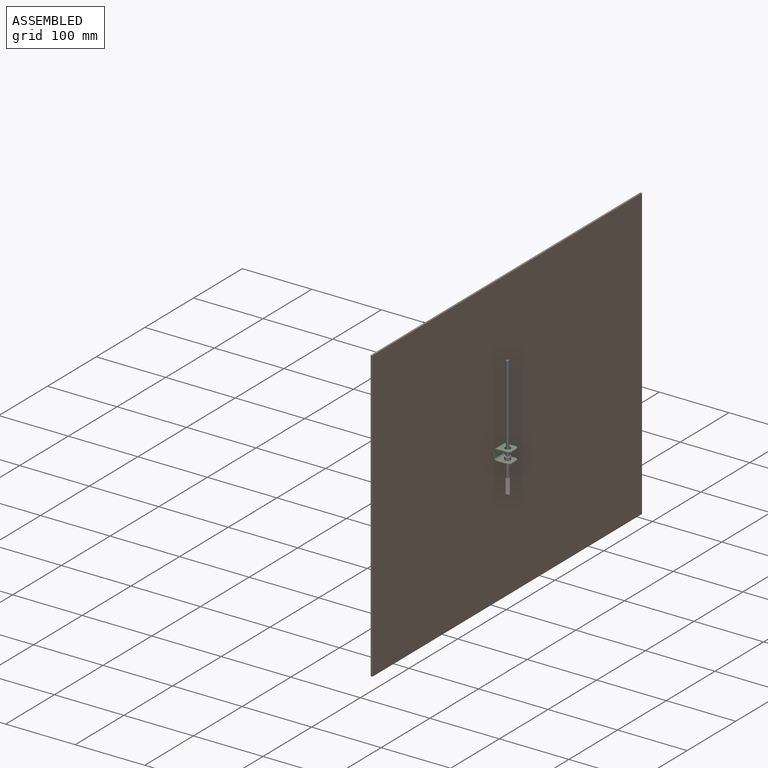
[diagram: assembled view]
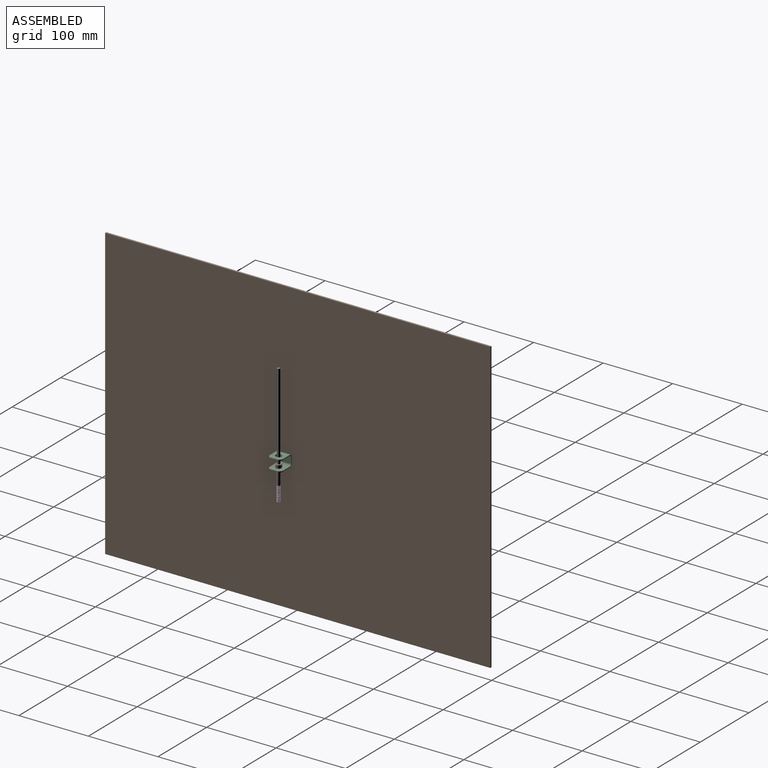
[diagram: assembled view, second angle]
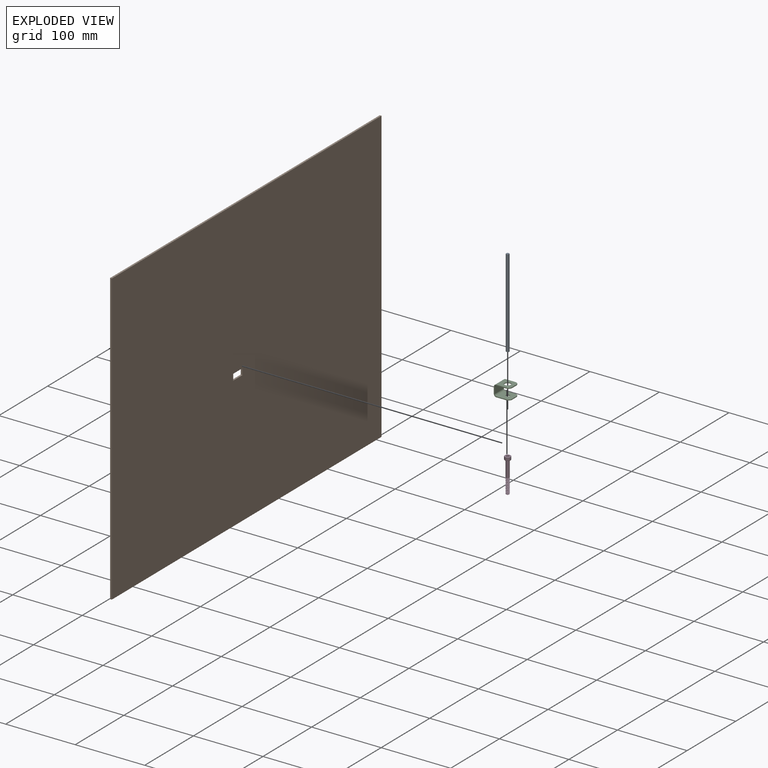
[diagram: exploded view]
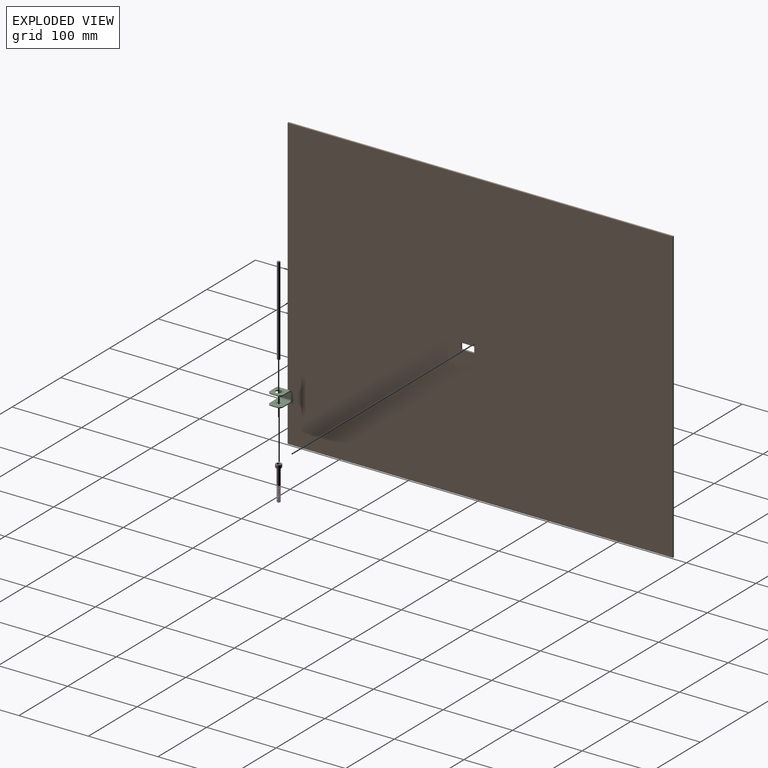
[diagram: exploded view, second angle]
ASSEMBLY  parts=4 mates=2
PART A: 8 faces, bbox 4x4.6x127 mm
  f0: plane 127x2.31mm, normal (1,0,0), area 293.3mm2, adj f1,f5,f6,f7
  f1: plane 127x2mm, normal (0.5,-0.87,0), area 293.3mm2, adj f0,f2,f6,f7
  f2: plane 127x2mm, normal (-0.5,-0.87,0), area 293.3mm2, adj f1,f3,f6,f7
  f3: plane 127x2.31mm, normal (-1,0,0), area 293.3mm2, adj f2,f4,f6,f7
  f4: plane 127x2mm, normal (-0.5,0.87,0), area 293.3mm2, adj f3,f5,f6,f7
  f5: plane 127x2mm, normal (0.5,0.87,0), area 293.3mm2, adj f0,f4,f6,f7
  f6: plane 4.62x4mm, normal (0,0,-1), area 13.9mm2, adj f0,f1,f2,f3,f4,f5
  f7: plane 4.62x4mm, normal (0,0,1), area 13.9mm2, adj f0,f1,f2,f3,f4,f5
PART B: 10 faces, bbox 2.5x553.9x417.4 mm
  f0: plane 8.89x2.54mm, normal (0,-1,0), area 22.6mm2, adj f1,f7,f8,f9
  f1: plane 19.05x2.54mm, normal (0,0,-1), area 48.4mm2, adj f0,f2,f8,f9
  f2: plane 8.89x2.54mm, normal (0,1,0), area 22.6mm2, adj f1,f7,f8,f9
  f3: plane 417.44x2.54mm, normal (0,-1,0), area 1060.3mm2, adj f4,f6,f8,f9
  f4: plane 553.86x2.54mm, normal (0,0,1), area 1406.8mm2, adj f3,f5,f8,f9
  f5: plane 417.44x2.54mm, normal (0,1,0), area 1060.3mm2, adj f4,f6,f8,f9
  f6: plane 553.86x2.54mm, normal (0,0,-1), area 1406.8mm2, adj f3,f5,f8,f9
  f7: plane 19.05x2.54mm, normal (0,0,1), area 48.4mm2, adj f0,f2,f8,f9
  f8: plane 553.86x417.44mm, normal (-1,0,0), area 231032mm2, adj f0,f1,f2,f3,f4,f5,f6,f7
  f9: plane 553.86x417.44mm, normal (1,0,0), area 231032mm2, adj f0,f1,f2,f3,f4,f5,f6,f7
PART C: 20 faces, bbox 22.8x19.1x16.4 mm
  f0: plane 19.05x19.05mm, normal (0,0,1), area 289.8mm2, adj f1,f11,f12,f13,f15,f17,f19
  f1: cylinder r=3.76mm len=19.05mm, axis (0,1,0), area 112.5mm2, adj f0,f2,f12,f13
  f2: plane 19.05x8.89mm, normal (-1,0,0), area 169.4mm2, adj f1,f3,f12,f13
  f3: cylinder r=3.76mm len=19.05mm, axis (0,1,0), area 112.5mm2, adj f2,f4,f12,f13
  f4: plane 19.05x19.05mm, normal (0,0,-1), area 331.6mm2, adj f3,f5,f12,f13,f14,f16,f18
  f5: plane 8.89x1.22mm, normal (1,0,0), area 10.8mm2, adj f4,f6,f16,f18
  f6: plane 19.05x19.05mm, normal (0,0,1), area 331.6mm2, adj f5,f7,f12,f13,f14,f16,f18
  f7: cylinder r=2.54mm len=19.05mm, axis (0,1,0), area 76mm2, adj f6,f8,f12,f13
  f8: plane 19.05x8.89mm, normal (1,0,0), area 169.4mm2, adj f7,f9,f12,f13
  f9: cylinder r=2.54mm len=19.05mm, axis (0,1,0), area 76mm2, adj f8,f10,f12,f13
  f10: plane 19.05x19.05mm, normal (0,0,-1), area 289.8mm2, adj f9,f11,f12,f13,f15,f17,f19
  f11: plane 8.89x1.22mm, normal (1,0,0), area 10.8mm2, adj f0,f10,f17,f19
  f12: plane 17.73x16.41mm, normal (0,-1,0), area 57mm2, adj f0,f1,f2,f3,f4,f6,f7,f8
  f13: plane 17.73x16.41mm, normal (0,1,0), area 57mm2, adj f0,f1,f2,f3,f4,f6,f7,f8
  f14: cylinder r=2.54mm len=5.08mm, axis (0,0,1), area 19.5mm2, adj f4,f6
  f15: cylinder r=4.45mm len=8.89mm, axis (0,0,1), area 34.1mm2, adj f0,f10
  f16: cylinder r=5.08mm len=5.08mm, axis (0,0,1), area 9.7mm2, adj f4,f5,f6,f13
  f17: cylinder r=5.08mm len=5.08mm, axis (0,0,1), area 9.7mm2, adj f0,f10,f11,f13
  f18: cylinder r=5.08mm len=5.08mm, axis (0,0,-1), area 9.7mm2, adj f4,f5,f6,f12
  f19: cylinder r=5.08mm len=5.08mm, axis (0,0,-1), area 9.7mm2, adj f0,f10,f11,f12
PART D: 53 faces, bbox 9.4x9.4x51.2 mm
  f0: plane 7.65x7.65mm, normal (0,0,1), area 26.3mm2, adj f28,f50
  f1: cylinder r=2.5mm len=5mm, axis (0,0,1), area 1mm2, adj f2,f29,f30,f32
  f2: cylinder r=2.5mm len=5mm, axis (0,0,1), area 1.6mm2, adj f1,f3,f29,f30
  f3: cylinder r=2.5mm len=5mm, axis (0,0,1), area 1.6mm2, adj f2,f4,f29,f30
  f4: cylinder r=2.5mm len=5mm, axis (0,0,1), area 1.6mm2, adj f3,f5,f29,f30
  f5: cylinder r=2.5mm len=5mm, axis (0,0,1), area 1.6mm2, adj f4,f6,f29,f30
  f6: cylinder r=2.5mm len=5mm, axis (0,0,1), area 1.6mm2, adj f5,f7,f29,f30
  f7: cylinder r=2.5mm len=5mm, axis (0,0,1), area 1.6mm2, adj f6,f8,f29,f30
  f8: cylinder r=2.5mm len=5mm, axis (0,0,1), area 1.6mm2, adj f7,f9,f29,f30
  f9: cylinder r=2.5mm len=5mm, axis (0,0,1), area 1.6mm2, adj f8,f10,f29,f30
  f10: cylinder r=2.5mm len=5mm, axis (0,0,1), area 1.6mm2, adj f9,f11,f29,f30
  f11: cylinder r=2.5mm len=5mm, axis (0,0,1), area 1.6mm2, adj f10,f12,f29,f30
  f12: cylinder r=2.5mm len=5mm, axis (0,0,1), area 1.6mm2, adj f11,f13,f29,f30
  f13: cylinder r=2.5mm len=5mm, axis (0,0,1), area 1.6mm2, adj f12,f14,f29,f30
  f14: cylinder r=2.5mm len=5mm, axis (0,0,1), area 1.6mm2, adj f13,f15,f29,f30
  f15: cylinder r=2.5mm len=5mm, axis (0,0,1), area 1.6mm2, adj f14,f16,f29,f30
  f16: cylinder r=2.5mm len=5mm, axis (0,0,1), area 1.6mm2, adj f15,f17,f29,f30
  f17: cylinder r=2.5mm len=5mm, axis (0,0,1), area 1.6mm2, adj f16,f18,f29,f30
  f18: cylinder r=2.5mm len=5mm, axis (0,0,1), area 1.6mm2, adj f17,f19,f29,f30
  f19: cylinder r=2.5mm len=5mm, axis (0,0,1), area 1.6mm2, adj f18,f20,f29,f30
  f20: cylinder r=2.5mm len=5mm, axis (0,0,1), area 1.6mm2, adj f19,f21,f29,f30
  f21: cylinder r=2.5mm len=5mm, axis (0,0,1), area 1.6mm2, adj f20,f22,f29,f30
  f22: cylinder r=2.5mm len=5mm, axis (0,0,1), area 1.6mm2, adj f21,f23,f29,f30
  f23: cylinder r=2.5mm len=5mm, axis (0,0,1), area 1.6mm2, adj f22,f24,f29,f30
  f24: cylinder r=2.5mm len=5mm, axis (0,0,1), area 1.6mm2, adj f23,f25,f29,f30
  f25: cylinder r=2.5mm len=5mm, axis (0,0,1), area 1.6mm2, adj f24,f26,f29,f30
  f26: cylinder r=2.5mm len=5mm, axis (0,0,1), area 1.6mm2, adj f25,f27,f29,f30
  f27: cylinder r=2.5mm len=5mm, axis (0,0,1), area 1.6mm2, adj f26,f28,f29,f30
  f28: cylinder r=2.5mm len=23.2mm, axis (0,0,1), area 360.2mm2, adj f0,f27,f29,f30,f51
  f29: bspline ~22.72x5.69mm, area 317.7mm2, adj f1,f2,f3,f4,f5,f6,f7,f8
  f30: bspline ~22.3x5.77mm, area 228.8mm2, adj f1,f2,f3,f4,f5,f6,f7,f8
  f31: cylinder r=1.98mm len=21.82mm, axis (0,0,-1), area 135.2mm2, adj f29,f30,f32,f52
  f32: cone r=1.73mm half-angle=55deg, axis (0,0,-1), area 7.9mm2, adj f1,f29,f30,f31,f33
  f33: plane 3.45x3.45mm, normal (0,0,1), area 9.4mm2, adj f32
  f34: cylinder r=4.25mm len=8.5mm, axis (0,0,1), area 110.8mm2, adj f49,f50
  f35: plane 8.4x8.4mm, normal (0,0,-1), area 29.2mm2, adj f36,f37,f38,f39,f40,f41,f49
  f36: cone r=2.31mm half-angle=45deg, axis (0,0,-1), area 0mm2, adj f35,f43
  f37: cone r=2.31mm half-angle=45deg, axis (0,0,-1), area 0mm2, adj f35,f44
  f38: cone r=2.31mm half-angle=45deg, axis (0,0,-1), area 0mm2, adj f35,f45
  f39: cone r=2.31mm half-angle=45deg, axis (0,0,-1), area 0mm2, adj f35,f46
  f40: cone r=2.31mm half-angle=45deg, axis (0,0,-1), area 0mm2, adj f35,f47
  f41: cone r=2.31mm half-angle=45deg, axis (0,0,-1), area 0mm2, adj f35,f48
  f42: plane 4.62x4mm, normal (0,0,-1), area 13.9mm2, adj f43,f44,f45,f46,f47,f48
  f43: plane 3.88x2.88mm, normal (-0.5,-0.87,0), area 6.5mm2, adj f36,f42,f44,f48
  f44: plane 3.88x3.19mm, normal (-1,0,0), area 6.5mm2, adj f37,f42,f43,f45
  f45: plane 3.88x2.88mm, normal (-0.5,0.87,0), area 6.5mm2, adj f38,f42,f44,f46
  f46: plane 3.88x2.88mm, normal (0.5,0.87,0), area 6.5mm2, adj f39,f42,f45,f47
  f47: plane 3.88x3.19mm, normal (1,0,0), area 6.5mm2, adj f40,f42,f46,f48
  f48: plane 3.88x2.88mm, normal (0.5,-0.87,0), area 6.5mm2, adj f41,f42,f43,f47
  f49: cone r=3.82mm half-angle=45deg, axis (0,0,1), area 15.2mm2, adj f34,f35
  f50: cone r=4.25mm half-angle=45deg, axis (0,0,-1), area 15.2mm2, adj f0,f34
  f51: cone r=2.4mm half-angle=45deg, axis (0,0,-1), area 1.7mm2, adj f28,f29,f30,f52
  f52: plane 5.01x4.77mm, normal (0,0,1), area 2.5mm2, adj f29,f30,f31,f51
PLACE A t=(4.32,-3.42,164.77)mm
PLACE B t=(-7.74,6.1,-7.25)mm
PLACE C t=(-7.74,6.1,-7.25)mm
PLACE D rot(axis=(1,0,0),180deg) t=(4.32,-3.42,-59.23)mm
MATE fastened B.f9 <-> C.f2  axis (1,0,0) through (-8.96,6.1,-7.25)mm
MATE fastened A.f6 <-> D.f1  axis (0,0,-1) through (4.32,-3.42,-12.23)mm
